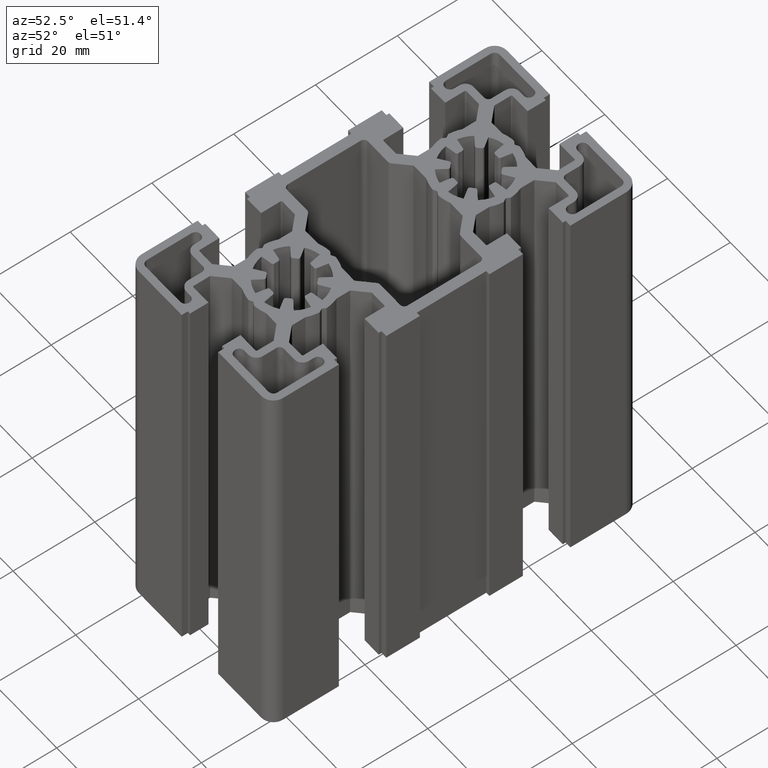
[diagram: clean part render]
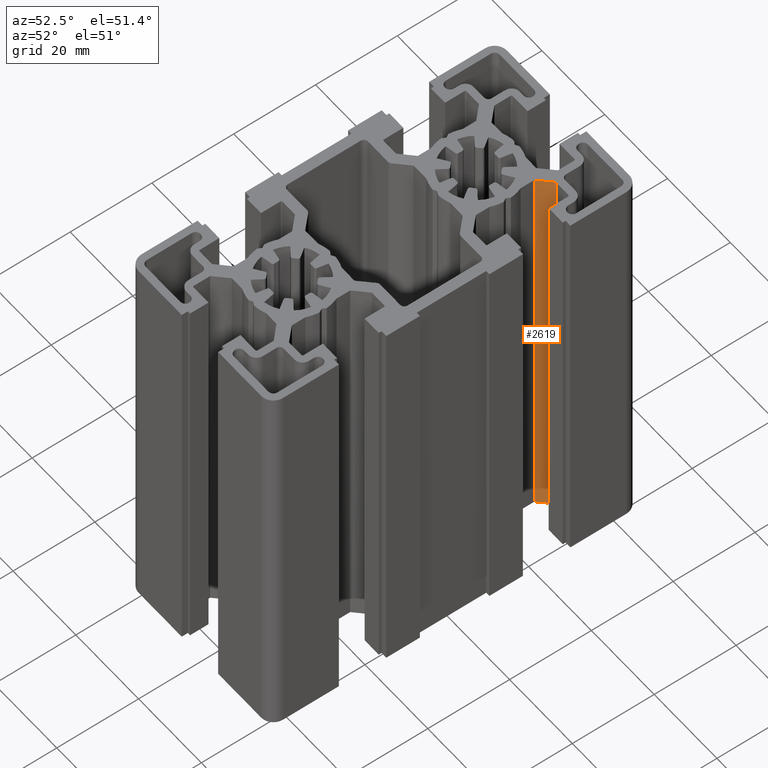
[diagram: same view with one face highlighted and labeled with its STEP entity id]
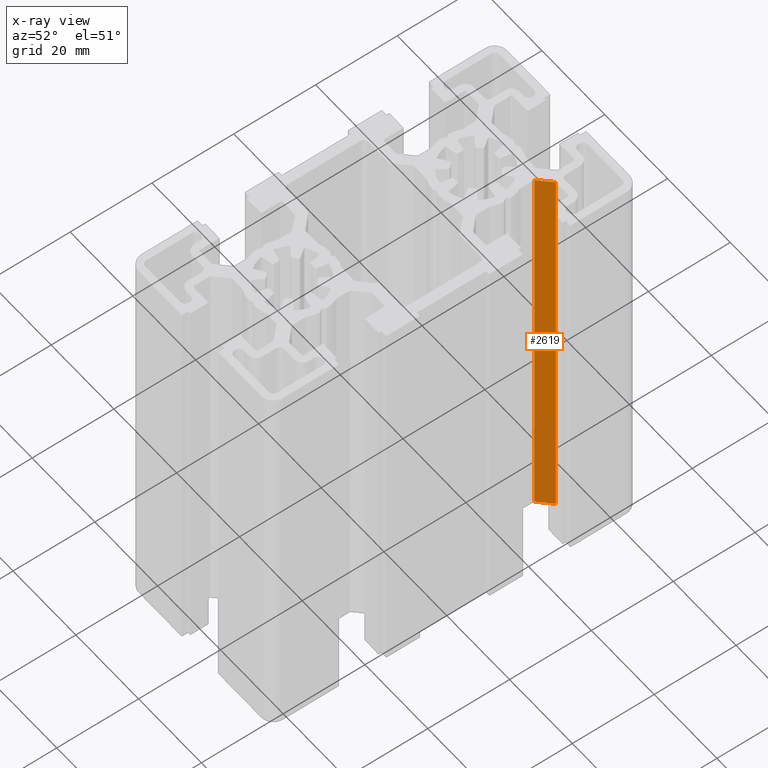
[diagram: x-ray of the same camera — body ghosted, the highlighted face saturated]
A machine part, auxiliary view. The second image highlights one B-rep face of the part: STEP entity #2619.
The next image is the same camera in x-ray: the body ghosted, the highlighted face saturated — about 0% of this face is hidden behind the body in this view.
In plain terms, the highlighted planar face has unit normal (-0.7071, 0.7071, 0).
Its self-contained STEP definition (entity closure, byte-faithful):
#1681 = VERTEX_POINT ( 'NONE', #6954 ) ;
#1684 = VERTEX_POINT ( 'NONE', #7005 ) ;
#1728 = EDGE_CURVE ( 'NONE', #1684, #1681, #7082, .T. ) ;
#2577 = EDGE_CURVE ( 'NONE', #1684, #3241, #8061, .T. ) ;
#2617 = EDGE_CURVE ( 'NONE', #1681, #3249, #8077, .T. ) ;
#2618 = ORIENTED_EDGE ( 'NONE', *, *, #2617, .F. ) ;
#2619 = ADVANCED_FACE ( 'NONE', ( #8049 ), #8083, .F. ) ;
#2620 = ORIENTED_EDGE ( 'NONE', *, *, #3288, .T. ) ;
#2629 = EDGE_LOOP ( 'NONE', ( #2620, #2618, #2666, #2665 ) ) ;
#2665 = ORIENTED_EDGE ( 'NONE', *, *, #2577, .T. ) ;
#2666 = ORIENTED_EDGE ( 'NONE', *, *, #1728, .F. ) ;
#3241 = VERTEX_POINT ( 'NONE', #8966 ) ;
#3249 = VERTEX_POINT ( 'NONE', #9013 ) ;
#3288 = EDGE_CURVE ( 'NONE', #3241, #3249, #9053, .T. ) ;
#6954 = CARTESIAN_POINT ( 'NONE',  ( 12.24632034355964000, 32.62500000000000000, 100.0000000000000000 ) ) ;
#7005 = CARTESIAN_POINT ( 'NONE',  ( 9.250000000000003600, 29.62867965644035100, 100.0000000000000000 ) ) ;
#7069 = DIRECTION ( 'NONE',  ( 0.7071067811865461300, 0.7071067811865489100, -0.0000000000000000000 ) ) ;
#7070 = VECTOR ( 'NONE', #7069, 1000.000000000000100 ) ;
#7082 = LINE ( 'NONE', #7087, #7070 ) ;
#7087 = CARTESIAN_POINT ( 'NONE',  ( 12.24632034355964000, 32.62500000000000000, 100.0000000000000000 ) ) ;
#8049 = FACE_OUTER_BOUND ( 'NONE', #2629, .T. ) ;
#8058 = DIRECTION ( 'NONE',  ( -0.0000000000000000000, -0.0000000000000000000, -1.000000000000000000 ) ) ;
#8059 = VECTOR ( 'NONE', #8058, 1000.000000000000000 ) ;
#8060 = CARTESIAN_POINT ( 'NONE',  ( 9.250000000000003600, 29.62867965644035100, 100.0000000000000000 ) ) ;
#8061 = LINE ( 'NONE', #8060, #8059 ) ;
#8077 = LINE ( 'NONE', #8131, #8130 ) ;
#8083 = PLANE ( 'NONE',  #8128 ) ;
#8092 = CARTESIAN_POINT ( 'NONE',  ( 12.24632034355964000, 32.62500000000000000, 100.0000000000000000 ) ) ;
#8124 = DIRECTION ( 'NONE',  ( -0.7071067811865461300, -0.7071067811865489100, 0.0000000000000000000 ) ) ;
#8125 = DIRECTION ( 'NONE',  ( -0.7071067811865489100, 0.7071067811865461300, 0.0000000000000000000 ) ) ;
#8128 = AXIS2_PLACEMENT_3D ( 'NONE', #8092, #8125, #8124 ) ;
#8129 = DIRECTION ( 'NONE',  ( -0.0000000000000000000, -0.0000000000000000000, -1.000000000000000000 ) ) ;
#8130 = VECTOR ( 'NONE', #8129, 1000.000000000000000 ) ;
#8131 = CARTESIAN_POINT ( 'NONE',  ( 12.24632034355964000, 32.62500000000000000, 100.0000000000000000 ) ) ;
#8966 = CARTESIAN_POINT ( 'NONE',  ( 9.250000000000003600, 29.62867965644035100, 0.0000000000000000000 ) ) ;
#9013 = CARTESIAN_POINT ( 'NONE',  ( 12.24632034355964000, 32.62500000000000000, 0.0000000000000000000 ) ) ;
#9050 = DIRECTION ( 'NONE',  ( 0.7071067811865461300, 0.7071067811865489100, -0.0000000000000000000 ) ) ;
#9051 = VECTOR ( 'NONE', #9050, 1000.000000000000100 ) ;
#9052 = CARTESIAN_POINT ( 'NONE',  ( 12.24632034355964000, 32.62500000000000000, 0.0000000000000000000 ) ) ;
#9053 = LINE ( 'NONE', #9052, #9051 ) ;